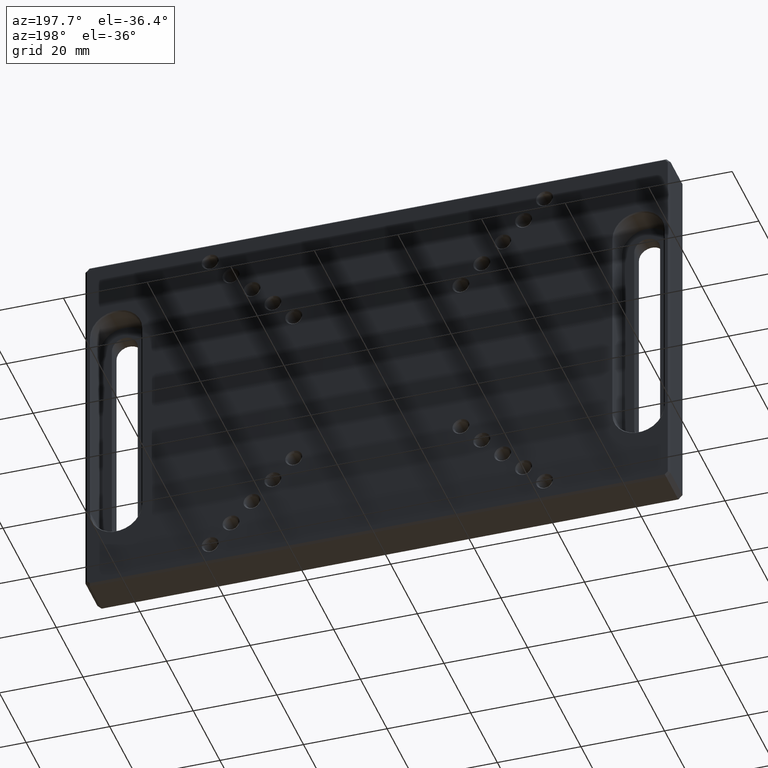
[diagram: clean part render]
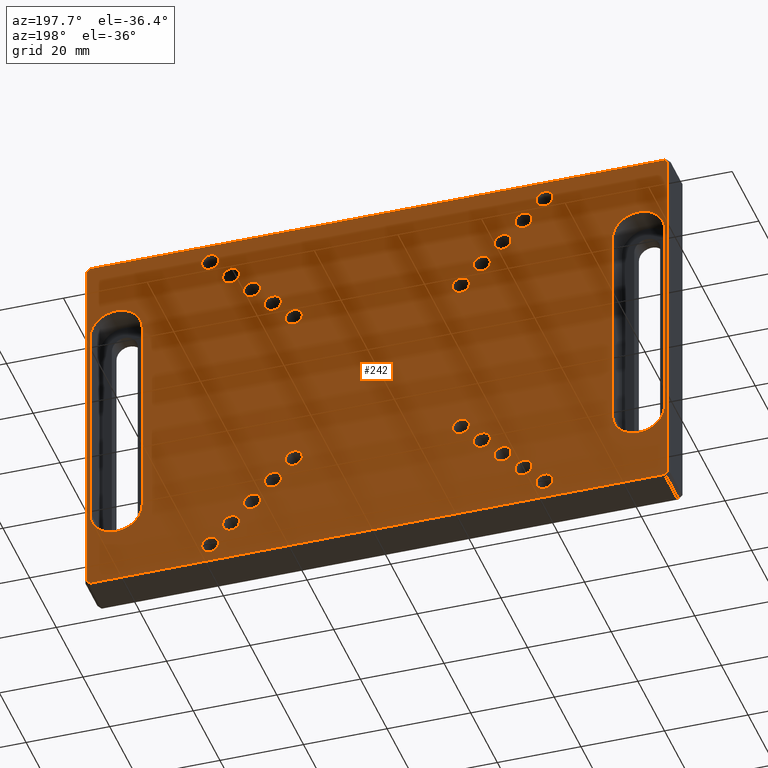
[diagram: same view with one face highlighted and labeled with its STEP entity id]
A machine part, auxiliary view. The second image highlights one B-rep face of the part: STEP entity #242.
In plain terms, the highlighted planar face has unit normal (0, 1, 0).
Its self-contained STEP definition (entity closure, byte-faithful):
#7 = CARTESIAN_POINT ( 'NONE',  ( -20.00000000000000711, 10.00000000000000178, 22.02499999999999858 ) ) ;
#18 = CARTESIAN_POINT ( 'NONE',  ( 29.99999999999999289, 10.00000000000000178, -29.99999999999999289 ) ) ;
#20 = DIRECTION ( 'NONE',  ( 0.000000000000000000, 0.000000000000000000, 1.000000000000000000 ) ) ;
#30 = DIRECTION ( 'NONE',  ( 0.000000000000000000, 0.000000000000000000, 1.000000000000000000 ) ) ;
#42 = CIRCLE ( 'NONE', #1720, 2.024999999999999023 ) ;
#51 = EDGE_CURVE ( 'NONE', #419, #1756, #1137, .T. ) ;
#53 = AXIS2_PLACEMENT_3D ( 'NONE', #1173, #2216, #1393 ) ;
#58 = AXIS2_PLACEMENT_3D ( 'NONE', #1581, #1317, #1689 ) ;
#59 = ORIENTED_EDGE ( 'NONE', *, *, #1620, .F. ) ;
#60 = DIRECTION ( 'NONE',  ( -0.000000000000000000, 1.000000000000000000, -0.000000000000000000 ) ) ;
#66 = VECTOR ( 'NONE', #2354, 1000.000000000000114 ) ;
#67 = ORIENTED_EDGE ( 'NONE', *, *, #161, .F. ) ;
#76 = ORIENTED_EDGE ( 'NONE', *, *, #1168, .F. ) ;
#106 = VERTEX_POINT ( 'NONE', #209 ) ;
#115 = EDGE_CURVE ( 'NONE', #690, #419, #2393, .T. ) ;
#123 = LINE ( 'NONE', #2121, #2123 ) ;
#145 = EDGE_LOOP ( 'NONE', ( #542 ) ) ;
#148 = ORIENTED_EDGE ( 'NONE', *, *, #1086, .T. ) ;
#154 = ORIENTED_EDGE ( 'NONE', *, *, #2022, .F. ) ;
#157 = ORIENTED_EDGE ( 'NONE', *, *, #51, .T. ) ;
#161 = EDGE_CURVE ( 'NONE', #321, #321, #1585, .T. ) ;
#194 = EDGE_LOOP ( 'NONE', ( #1064 ) ) ;
#199 = CARTESIAN_POINT ( 'NONE',  ( 34.99999999999998579, 10.00000000000000178, -32.97500000000001563 ) ) ;
#201 = AXIS2_PLACEMENT_3D ( 'NONE', #1565, #1133, #1342 ) ;
#205 = CARTESIAN_POINT ( 'NONE',  ( 68.79289321881347519, 10.00000000000000000, -44.50000000000001421 ) ) ;
#209 = CARTESIAN_POINT ( 'NONE',  ( 68.75000000000000000, 10.00000000000000000, -25.00000000000000711 ) ) ;
#210 = CARTESIAN_POINT ( 'NONE',  ( 56.24999999999996447, 10.00000000000000000, -24.99999999999999289 ) ) ;
#222 = CARTESIAN_POINT ( 'NONE',  ( 34.99999999999998579, 10.00000000000000178, -35.00000000000001421 ) ) ;
#237 = ORIENTED_EDGE ( 'NONE', *, *, #1379, .T. ) ;
#242 = ADVANCED_FACE ( 'NONE', ( #1651, #2457, #1035, #2431, #439, #1252, #2035, #1445, #663, #246, #649, #1625, #2484, #466, #1893, #2232, #2259, #1239, #1048, #1665, #2271, #286, #844 ), #1638, .T. ) ;
#246 = FACE_BOUND ( 'NONE', #194, .T. ) ;
#252 = AXIS2_PLACEMENT_3D ( 'NONE', #985, #1787, #2594 ) ;
#258 = DIRECTION ( 'NONE',  ( 0.000000000000000000, 0.000000000000000000, -1.000000000000000000 ) ) ;
#261 = AXIS2_PLACEMENT_3D ( 'NONE', #2050, #2499, #1485 ) ;
#264 = EDGE_LOOP ( 'NONE', ( #2187 ) ) ;
#267 = AXIS2_PLACEMENT_3D ( 'NONE', #1490, #60, #1698 ) ;
#272 = EDGE_LOOP ( 'NONE', ( #76 ) ) ;
#275 = CARTESIAN_POINT ( 'NONE',  ( 69.50000000000000000, 10.00000000000000000, -43.79289321881348229 ) ) ;
#278 = VERTEX_POINT ( 'NONE', #1678 ) ;
#284 = EDGE_CURVE ( 'NONE', #2107, #2107, #1172, .T. ) ;
#286 = FACE_BOUND ( 'NONE', #264, .T. ) ;
#291 = DIRECTION ( 'NONE',  ( -0.000000000000000000, -1.000000000000000000, -0.000000000000000000 ) ) ;
#302 = ORIENTED_EDGE ( 'NONE', *, *, #1776, .F. ) ;
#309 = VECTOR ( 'NONE', #2220, 1000.000000000000000 ) ;
#311 = EDGE_LOOP ( 'NONE', ( #1251 ) ) ;
#315 = VECTOR ( 'NONE', #2058, 1000.000000000000000 ) ;
#318 = DIRECTION ( 'NONE',  ( 0.000000000000000000, 0.000000000000000000, -1.000000000000000000 ) ) ;
#321 = VERTEX_POINT ( 'NONE', #941 ) ;
#331 = EDGE_LOOP ( 'NONE', ( #1292 ) ) ;
#337 = DIRECTION ( 'NONE',  ( -0.7071067811865524577, 0.000000000000000000, 0.7071067811865426878 ) ) ;
#341 = CARTESIAN_POINT ( 'NONE',  ( -40.00000000000001421, 10.00000000000000178, 39.99999999999999289 ) ) ;
#343 = ORIENTED_EDGE ( 'NONE', *, *, #1617, .F. ) ;
#351 = DIRECTION ( 'NONE',  ( 0.000000000000000000, 0.000000000000000000, 1.000000000000000000 ) ) ;
#386 = ORIENTED_EDGE ( 'NONE', *, *, #2573, .T. ) ;
#393 = DIRECTION ( 'NONE',  ( 0.000000000000000000, 0.000000000000000000, 1.000000000000000000 ) ) ;
#397 = CARTESIAN_POINT ( 'NONE',  ( 62.49999999999998579, 10.00000000000000000, -25.00000000000000711 ) ) ;
#404 = DIRECTION ( 'NONE',  ( 0.000000000000000000, 0.000000000000000000, 1.000000000000000000 ) ) ;
#406 = VERTEX_POINT ( 'NONE', #1813 ) ;
#413 = AXIS2_PLACEMENT_3D ( 'NONE', #1507, #1890, #2453 ) ;
#417 = AXIS2_PLACEMENT_3D ( 'NONE', #835, #1840, #2049 ) ;
#419 = VERTEX_POINT ( 'NONE', #2113 ) ;
#430 = VERTEX_POINT ( 'NONE', #1230 ) ;
#435 = AXIS2_PLACEMENT_3D ( 'NONE', #449, #2480, #1676 ) ;
#439 = FACE_BOUND ( 'NONE', #758, .T. ) ;
#443 = CARTESIAN_POINT ( 'NONE',  ( -20.00000000000000711, 10.00000000000000178, 20.00000000000000000 ) ) ;
#449 = CARTESIAN_POINT ( 'NONE',  ( -62.50000000000001421, 10.00000000000000000, 25.00000000000000000 ) ) ;
#453 = CIRCLE ( 'NONE', #413, 2.024999999999999023 ) ;
#456 = CARTESIAN_POINT ( 'NONE',  ( 62.49999999999998579, 10.00000000000000000, 25.00000000000000000 ) ) ;
#460 = EDGE_CURVE ( 'NONE', #1326, #1326, #2186, .T. ) ;
#466 = FACE_BOUND ( 'NONE', #1208, .T. ) ;
#492 = DIRECTION ( 'NONE',  ( -0.000000000000000000, 1.000000000000000000, -0.000000000000000000 ) ) ;
#498 = CARTESIAN_POINT ( 'NONE',  ( -68.75000000000000000, 10.00000000000000000, -25.00000000000000000 ) ) ;
#500 = EDGE_CURVE ( 'NONE', #1936, #1936, #851, .T. ) ;
#517 = AXIS2_PLACEMENT_3D ( 'NONE', #997, #1775, #2193 ) ;
#522 = VERTEX_POINT ( 'NONE', #205 ) ;
#534 = CIRCLE ( 'NONE', #1157, 2.024999999999999023 ) ;
#542 = ORIENTED_EDGE ( 'NONE', *, *, #1409, .F. ) ;
#551 = CARTESIAN_POINT ( 'NONE',  ( -69.00000000000001421, 10.00000000000000000, -44.50000000000002132 ) ) ;
#558 = DIRECTION ( 'NONE',  ( 0.000000000000000000, 0.000000000000000000, 1.000000000000000000 ) ) ;
#567 = DIRECTION ( 'NONE',  ( 1.000000000000000000, 0.000000000000000000, 0.000000000000000000 ) ) ;
#577 = EDGE_CURVE ( 'NONE', #1756, #785, #605, .T. ) ;
#588 = CARTESIAN_POINT ( 'NONE',  ( 40.00000000000000000, 10.00000000000000178, 42.02499999999999147 ) ) ;
#600 = VERTEX_POINT ( 'NONE', #1205 ) ;
#605 = LINE ( 'NONE', #782, #2486 ) ;
#607 = ORIENTED_EDGE ( 'NONE', *, *, #2246, .T. ) ;
#609 = CARTESIAN_POINT ( 'NONE',  ( 68.75000000000000000, 10.00000000000000000, 0.000000000000000000 ) ) ;
#610 = CARTESIAN_POINT ( 'NONE',  ( -25.00000000000001066, 10.00000000000000178, -22.97500000000000142 ) ) ;
#622 = EDGE_CURVE ( 'NONE', #278, #1047, #1649, .T. ) ;
#639 = EDGE_CURVE ( 'NONE', #1373, #1373, #1518, .T. ) ;
#645 = ORIENTED_EDGE ( 'NONE', *, *, #1758, .F. ) ;
#649 = FACE_BOUND ( 'NONE', #311, .T. ) ;
#653 = EDGE_CURVE ( 'NONE', #1047, #696, #1769, .T. ) ;
#661 = LINE ( 'NONE', #686, #772 ) ;
#663 = FACE_BOUND ( 'NONE', #958, .T. ) ;
#666 = EDGE_CURVE ( 'NONE', #1820, #1538, #661, .T. ) ;
#674 = DIRECTION ( 'NONE',  ( -0.000000000000000000, 1.000000000000000000, -0.000000000000000000 ) ) ;
#682 = DIRECTION ( 'NONE',  ( 0.000000000000000000, 0.000000000000000000, 1.000000000000000000 ) ) ;
#686 = CARTESIAN_POINT ( 'NONE',  ( 69.50000000000000000, 10.00000000000000000, -44.00000000000000711 ) ) ;
#690 = VERTEX_POINT ( 'NONE', #855 ) ;
#696 = VERTEX_POINT ( 'NONE', #1481 ) ;
#703 = CARTESIAN_POINT ( 'NONE',  ( -35.00000000000002132, 10.00000000000000178, -35.00000000000001421 ) ) ;
#721 = CIRCLE ( 'NONE', #2009, 2.024999999999999023 ) ;
#725 = CARTESIAN_POINT ( 'NONE',  ( -35.00000000000001421, 10.00000000000000178, 37.02499999999999147 ) ) ;
#732 = CARTESIAN_POINT ( 'NONE',  ( -68.79289321881343255, 10.00000000000000000, 44.50000000000000000 ) ) ;
#752 = DIRECTION ( 'NONE',  ( 0.000000000000000000, 0.000000000000000000, 1.000000000000000000 ) ) ;
#758 = EDGE_LOOP ( 'NONE', ( #2443 ) ) ;
#772 = VECTOR ( 'NONE', #258, 1000.000000000000000 ) ;
#773 = ORIENTED_EDGE ( 'NONE', *, *, #1695, .T. ) ;
#776 = VERTEX_POINT ( 'NONE', #610 ) ;
#781 = EDGE_CURVE ( 'NONE', #776, #776, #1476, .T. ) ;
#782 = CARTESIAN_POINT ( 'NONE',  ( 68.99999999999998579, 10.00000000000000000, 44.50000000000000000 ) ) ;
#785 = VERTEX_POINT ( 'NONE', #2572 ) ;
#787 = DIRECTION ( 'NONE',  ( 3.083952846180990774E-16, 0.000000000000000000, 1.000000000000000000 ) ) ;
#788 = CARTESIAN_POINT ( 'NONE',  ( -30.00000000000000711, 10.00000000000000178, -29.99999999999999289 ) ) ;
#789 = VERTEX_POINT ( 'NONE', #1802 ) ;
#793 = ORIENTED_EDGE ( 'NONE', *, *, #1236, .F. ) ;
#800 = CARTESIAN_POINT ( 'NONE',  ( -35.00000000000002132, 10.00000000000000178, -32.97500000000001563 ) ) ;
#811 = CARTESIAN_POINT ( 'NONE',  ( -20.00000000000000711, 10.00000000000000178, -17.97500000000000142 ) ) ;
#820 = EDGE_LOOP ( 'NONE', ( #343 ) ) ;
#823 = LINE ( 'NONE', #609, #309 ) ;
#835 = CARTESIAN_POINT ( 'NONE',  ( 0.000000000000000000, 10.00000000000000000, 0.000000000000000000 ) ) ;
#840 = DIRECTION ( 'NONE',  ( 0.000000000000000000, 0.000000000000000000, -1.000000000000000000 ) ) ;
#844 = FACE_OUTER_BOUND ( 'NONE', #2368, .T. ) ;
#848 = EDGE_LOOP ( 'NONE', ( #67 ) ) ;
#851 = CIRCLE ( 'NONE', #53, 2.024999999999999023 ) ;
#855 = CARTESIAN_POINT ( 'NONE',  ( -69.50000000000002842, 10.00000000000000000, -43.79289321881346808 ) ) ;
#880 = CARTESIAN_POINT ( 'NONE',  ( -68.79289321881347519, 10.00000000000000000, -44.50000000000002132 ) ) ;
#888 = EDGE_LOOP ( 'NONE', ( #302 ) ) ;
#914 = CARTESIAN_POINT ( 'NONE',  ( 34.99999999999999289, 10.00000000000000178, 34.99999999999999289 ) ) ;
#925 = DIRECTION ( 'NONE',  ( -0.7071067811865474617, 0.000000000000000000, -0.7071067811865474617 ) ) ;
#928 = CARTESIAN_POINT ( 'NONE',  ( -56.64644660940718524, 10.00000000000000000, 56.64644660940640364 ) ) ;
#941 = CARTESIAN_POINT ( 'NONE',  ( -40.00000000000001421, 10.00000000000000178, -37.97500000000000853 ) ) ;
#958 = EDGE_LOOP ( 'NONE', ( #793 ) ) ;
#966 = CIRCLE ( 'NONE', #2438, 2.024999999999999023 ) ;
#977 = EDGE_CURVE ( 'NONE', #1764, #1764, #1192, .T. ) ;
#980 = DIRECTION ( 'NONE',  ( -0.000000000000000000, 1.000000000000000000, -0.000000000000000000 ) ) ;
#981 = CARTESIAN_POINT ( 'NONE',  ( 68.75000000000000000, 10.00000000000000000, 25.00000000000000000 ) ) ;
#985 = CARTESIAN_POINT ( 'NONE',  ( -40.00000000000001421, 10.00000000000000178, -40.00000000000000711 ) ) ;
#987 = VERTEX_POINT ( 'NONE', #2597 ) ;
#996 = DIRECTION ( 'NONE',  ( 0.7071067811865426878, 0.000000000000000000, 0.7071067811865524577 ) ) ;
#997 = CARTESIAN_POINT ( 'NONE',  ( -62.50000000000001421, 10.00000000000000000, -25.00000000000000000 ) ) ;
#1005 = CARTESIAN_POINT ( 'NONE',  ( -35.00000000000001421, 10.00000000000000178, 34.99999999999999289 ) ) ;
#1013 = VERTEX_POINT ( 'NONE', #811 ) ;
#1023 = AXIS2_PLACEMENT_3D ( 'NONE', #397, #1194, #2196 ) ;
#1035 = FACE_BOUND ( 'NONE', #848, .T. ) ;
#1038 = CARTESIAN_POINT ( 'NONE',  ( 19.99999999999999289, 10.00000000000000178, -17.97500000000000142 ) ) ;
#1047 = VERTEX_POINT ( 'NONE', #2011 ) ;
#1048 = FACE_BOUND ( 'NONE', #2134, .T. ) ;
#1064 = ORIENTED_EDGE ( 'NONE', *, *, #1429, .F. ) ;
#1067 = CIRCLE ( 'NONE', #1113, 2.024999999999999023 ) ;
#1070 = DIRECTION ( 'NONE',  ( 0.000000000000000000, 0.000000000000000000, 1.000000000000000000 ) ) ;
#1078 = VERTEX_POINT ( 'NONE', #498 ) ;
#1085 = ORIENTED_EDGE ( 'NONE', *, *, #653, .T. ) ;
#1086 = EDGE_CURVE ( 'NONE', #1921, #2475, #2406, .T. ) ;
#1107 = LINE ( 'NONE', #1119, #66 ) ;
#1108 = ORIENTED_EDGE ( 'NONE', *, *, #781, .F. ) ;
#1113 = AXIS2_PLACEMENT_3D ( 'NONE', #341, #1920, #351 ) ;
#1119 = CARTESIAN_POINT ( 'NONE',  ( 56.64644660940648890, 10.00000000000000000, 56.64644660940687970 ) ) ;
#1133 = DIRECTION ( 'NONE',  ( -0.000000000000000000, 1.000000000000000000, -0.000000000000000000 ) ) ;
#1137 = LINE ( 'NONE', #928, #2131 ) ;
#1154 = EDGE_CURVE ( 'NONE', #2475, #1365, #2504, .T. ) ;
#1157 = AXIS2_PLACEMENT_3D ( 'NONE', #914, #1525, #558 ) ;
#1168 = EDGE_CURVE ( 'NONE', #1217, #1217, #1559, .T. ) ;
#1172 = CIRCLE ( 'NONE', #2301, 2.024999999999999023 ) ;
#1173 = CARTESIAN_POINT ( 'NONE',  ( -25.00000000000000355, 10.00000000000000178, 25.00000000000000000 ) ) ;
#1179 = CIRCLE ( 'NONE', #1674, 2.024999999999999023 ) ;
#1191 = VERTEX_POINT ( 'NONE', #199 ) ;
#1192 = CIRCLE ( 'NONE', #2576, 2.024999999999999023 ) ;
#1194 = DIRECTION ( 'NONE',  ( -0.000000000000000000, -1.000000000000000000, -0.000000000000000000 ) ) ;
#1205 = CARTESIAN_POINT ( 'NONE',  ( -40.00000000000001421, 10.00000000000000178, 42.02499999999999147 ) ) ;
#1208 = EDGE_LOOP ( 'NONE', ( #645 ) ) ;
#1217 = VERTEX_POINT ( 'NONE', #588 ) ;
#1230 = CARTESIAN_POINT ( 'NONE',  ( 30.00000000000000000, 10.00000000000000178, 32.02500000000000568 ) ) ;
#1236 = EDGE_CURVE ( 'NONE', #1777, #1777, #1680, .T. ) ;
#1239 = FACE_BOUND ( 'NONE', #1939, .T. ) ;
#1240 = CIRCLE ( 'NONE', #1023, 6.250000000000019540 ) ;
#1251 = ORIENTED_EDGE ( 'NONE', *, *, #1505, .F. ) ;
#1252 = FACE_BOUND ( 'NONE', #1288, .T. ) ;
#1276 = AXIS2_PLACEMENT_3D ( 'NONE', #456, #291, #682 ) ;
#1288 = EDGE_LOOP ( 'NONE', ( #1108 ) ) ;
#1292 = ORIENTED_EDGE ( 'NONE', *, *, #284, .F. ) ;
#1293 = DIRECTION ( 'NONE',  ( 0.000000000000000000, 0.000000000000000000, 1.000000000000000000 ) ) ;
#1317 = DIRECTION ( 'NONE',  ( -0.000000000000000000, 1.000000000000000000, -0.000000000000000000 ) ) ;
#1326 = VERTEX_POINT ( 'NONE', #725 ) ;
#1327 = ORIENTED_EDGE ( 'NONE', *, *, #460, .F. ) ;
#1342 = DIRECTION ( 'NONE',  ( 0.000000000000000000, 0.000000000000000000, 1.000000000000000000 ) ) ;
#1349 = DIRECTION ( 'NONE',  ( -0.000000000000000000, 1.000000000000000000, -0.000000000000000000 ) ) ;
#1359 = DIRECTION ( 'NONE',  ( 0.000000000000000000, 0.000000000000000000, 1.000000000000000000 ) ) ;
#1365 = VERTEX_POINT ( 'NONE', #210 ) ;
#1368 = EDGE_CURVE ( 'NONE', #106, #1921, #823, .T. ) ;
#1373 = VERTEX_POINT ( 'NONE', #2421 ) ;
#1376 = EDGE_CURVE ( 'NONE', #789, #789, #966, .T. ) ;
#1378 = ORIENTED_EDGE ( 'NONE', *, *, #1368, .T. ) ;
#1379 = EDGE_CURVE ( 'NONE', #1078, #278, #1637, .T. ) ;
#1393 = DIRECTION ( 'NONE',  ( 0.000000000000000000, 0.000000000000000000, 1.000000000000000000 ) ) ;
#1399 = CARTESIAN_POINT ( 'NONE',  ( -20.00000000000000711, 10.00000000000000178, -20.00000000000000000 ) ) ;
#1409 = EDGE_CURVE ( 'NONE', #1013, #1013, #1554, .T. ) ;
#1422 = DIRECTION ( 'NONE',  ( -0.000000000000000000, 1.000000000000000000, -0.000000000000000000 ) ) ;
#1423 = CARTESIAN_POINT ( 'NONE',  ( 24.99999999999998934, 10.00000000000000178, -22.97499999999999787 ) ) ;
#1429 = EDGE_CURVE ( 'NONE', #1604, #1604, #42, .T. ) ;
#1431 = VECTOR ( 'NONE', #318, 1000.000000000000000 ) ;
#1433 = DIRECTION ( 'NONE',  ( 0.000000000000000000, 0.000000000000000000, 1.000000000000000000 ) ) ;
#1441 = EDGE_LOOP ( 'NONE', ( #2270 ) ) ;
#1445 = FACE_BOUND ( 'NONE', #2102, .T. ) ;
#1460 = VERTEX_POINT ( 'NONE', #1038 ) ;
#1476 = CIRCLE ( 'NONE', #58, 2.024999999999999023 ) ;
#1481 = CARTESIAN_POINT ( 'NONE',  ( -68.75000000000000000, 10.00000000000000000, 25.00000000000000000 ) ) ;
#1484 = CARTESIAN_POINT ( 'NONE',  ( 24.99999999999999645, 10.00000000000000178, 25.00000000000000000 ) ) ;
#1485 = DIRECTION ( 'NONE',  ( 0.000000000000000000, 0.000000000000000000, 1.000000000000000000 ) ) ;
#1490 = CARTESIAN_POINT ( 'NONE',  ( 40.00000000000000000, 10.00000000000000178, 39.99999999999999289 ) ) ;
#1505 = EDGE_CURVE ( 'NONE', #1191, #1191, #1179, .T. ) ;
#1507 = CARTESIAN_POINT ( 'NONE',  ( 19.99999999999999289, 10.00000000000000178, -20.00000000000000000 ) ) ;
#1518 = CIRCLE ( 'NONE', #1563, 2.024999999999999023 ) ;
#1525 = DIRECTION ( 'NONE',  ( -0.000000000000000000, 1.000000000000000000, -0.000000000000000000 ) ) ;
#1528 = ORIENTED_EDGE ( 'NONE', *, *, #1154, .T. ) ;
#1538 = VERTEX_POINT ( 'NONE', #275 ) ;
#1554 = CIRCLE ( 'NONE', #2265, 2.024999999999999023 ) ;
#1559 = CIRCLE ( 'NONE', #267, 2.024999999999999023 ) ;
#1562 = ORIENTED_EDGE ( 'NONE', *, *, #115, .T. ) ;
#1563 = AXIS2_PLACEMENT_3D ( 'NONE', #2441, #674, #1070 ) ;
#1565 = CARTESIAN_POINT ( 'NONE',  ( 30.00000000000000000, 10.00000000000000178, 30.00000000000000711 ) ) ;
#1581 = CARTESIAN_POINT ( 'NONE',  ( -25.00000000000001066, 10.00000000000000178, -25.00000000000000000 ) ) ;
#1585 = CIRCLE ( 'NONE', #252, 2.024999999999999023 ) ;
#1586 = DIRECTION ( 'NONE',  ( 0.000000000000000000, 0.000000000000000000, 1.000000000000000000 ) ) ;
#1591 = DIRECTION ( 'NONE',  ( -0.000000000000000000, 1.000000000000000000, -0.000000000000000000 ) ) ;
#1604 = VERTEX_POINT ( 'NONE', #1789 ) ;
#1617 = EDGE_CURVE ( 'NONE', #987, #987, #1846, .T. ) ;
#1620 = EDGE_CURVE ( 'NONE', #2222, #2222, #721, .T. ) ;
#1625 = FACE_BOUND ( 'NONE', #1441, .T. ) ;
#1637 = CIRCLE ( 'NONE', #517, 6.249999999999992006 ) ;
#1638 = PLANE ( 'NONE',  #417 ) ;
#1649 = LINE ( 'NONE', #2466, #315 ) ;
#1651 = FACE_BOUND ( 'NONE', #2524, .T. ) ;
#1665 = FACE_BOUND ( 'NONE', #2575, .T. ) ;
#1674 = AXIS2_PLACEMENT_3D ( 'NONE', #222, #1422, #393 ) ;
#1676 = DIRECTION ( 'NONE',  ( 0.000000000000000000, 0.000000000000000000, 1.000000000000000000 ) ) ;
#1678 = CARTESIAN_POINT ( 'NONE',  ( -56.25000000000002842, 10.00000000000000000, -25.00000000000000000 ) ) ;
#1680 = CIRCLE ( 'NONE', #2397, 2.024999999999999023 ) ;
#1685 = AXIS2_PLACEMENT_3D ( 'NONE', #1005, #980, #1586 ) ;
#1689 = DIRECTION ( 'NONE',  ( 0.000000000000000000, 0.000000000000000000, 1.000000000000000000 ) ) ;
#1695 = EDGE_CURVE ( 'NONE', #785, #1820, #1107, .T. ) ;
#1697 = ORIENTED_EDGE ( 'NONE', *, *, #2135, .F. ) ;
#1698 = DIRECTION ( 'NONE',  ( 0.000000000000000000, 0.000000000000000000, 1.000000000000000000 ) ) ;
#1702 = EDGE_CURVE ( 'NONE', #1538, #522, #2151, .T. ) ;
#1720 = AXIS2_PLACEMENT_3D ( 'NONE', #18, #2024, #30 ) ;
#1739 = EDGE_CURVE ( 'NONE', #600, #600, #1067, .T. ) ;
#1740 = ORIENTED_EDGE ( 'NONE', *, *, #2359, .T. ) ;
#1753 = VECTOR ( 'NONE', #1950, 1000.000000000000000 ) ;
#1756 = VERTEX_POINT ( 'NONE', #732 ) ;
#1758 = EDGE_CURVE ( 'NONE', #406, #406, #534, .T. ) ;
#1764 = VERTEX_POINT ( 'NONE', #7 ) ;
#1769 = CIRCLE ( 'NONE', #435, 6.249999999999992006 ) ;
#1775 = DIRECTION ( 'NONE',  ( -0.000000000000000000, -1.000000000000000000, -0.000000000000000000 ) ) ;
#1776 = EDGE_CURVE ( 'NONE', #430, #430, #1826, .T. ) ;
#1777 = VERTEX_POINT ( 'NONE', #1423 ) ;
#1781 = EDGE_LOOP ( 'NONE', ( #59 ) ) ;
#1787 = DIRECTION ( 'NONE',  ( -0.000000000000000000, 1.000000000000000000, -0.000000000000000000 ) ) ;
#1789 = CARTESIAN_POINT ( 'NONE',  ( 29.99999999999999289, 10.00000000000000178, -27.97499999999999432 ) ) ;
#1795 = VECTOR ( 'NONE', #787, 1000.000000000000000 ) ;
#1802 = CARTESIAN_POINT ( 'NONE',  ( -30.00000000000000711, 10.00000000000000178, -27.97499999999999432 ) ) ;
#1808 = ORIENTED_EDGE ( 'NONE', *, *, #500, .F. ) ;
#1813 = CARTESIAN_POINT ( 'NONE',  ( 34.99999999999999289, 10.00000000000000178, 37.02499999999999147 ) ) ;
#1820 = VERTEX_POINT ( 'NONE', #2317 ) ;
#1826 = CIRCLE ( 'NONE', #201, 2.024999999999999023 ) ;
#1828 = CARTESIAN_POINT ( 'NONE',  ( -69.50000000000000000, 10.00000000000000000, 43.99999999999995737 ) ) ;
#1834 = LINE ( 'NONE', #2185, #2116 ) ;
#1840 = DIRECTION ( 'NONE',  ( 0.000000000000000000, 1.000000000000000000, 0.000000000000000000 ) ) ;
#1846 = CIRCLE ( 'NONE', #261, 2.024999999999999023 ) ;
#1870 = VERTEX_POINT ( 'NONE', #2291 ) ;
#1890 = DIRECTION ( 'NONE',  ( -0.000000000000000000, 1.000000000000000000, -0.000000000000000000 ) ) ;
#1893 = FACE_BOUND ( 'NONE', #888, .T. ) ;
#1895 = ORIENTED_EDGE ( 'NONE', *, *, #666, .T. ) ;
#1920 = DIRECTION ( 'NONE',  ( -0.000000000000000000, 1.000000000000000000, -0.000000000000000000 ) ) ;
#1921 = VERTEX_POINT ( 'NONE', #981 ) ;
#1926 = CARTESIAN_POINT ( 'NONE',  ( -25.00000000000000355, 10.00000000000000178, 27.02500000000000213 ) ) ;
#1936 = VERTEX_POINT ( 'NONE', #1926 ) ;
#1939 = EDGE_LOOP ( 'NONE', ( #2560 ) ) ;
#1950 = DIRECTION ( 'NONE',  ( -1.000000000000000000, 0.000000000000000000, -4.956352788505162775E-17 ) ) ;
#1995 = AXIS2_PLACEMENT_3D ( 'NONE', #2574, #1349, #752 ) ;
#2009 = AXIS2_PLACEMENT_3D ( 'NONE', #703, #2260, #2470 ) ;
#2011 = CARTESIAN_POINT ( 'NONE',  ( -56.25000000000002842, 10.00000000000000000, 25.00000000000000000 ) ) ;
#2022 = EDGE_CURVE ( 'NONE', #1460, #1460, #453, .T. ) ;
#2024 = DIRECTION ( 'NONE',  ( -0.000000000000000000, 1.000000000000000000, -0.000000000000000000 ) ) ;
#2029 = VERTEX_POINT ( 'NONE', #880 ) ;
#2035 = FACE_BOUND ( 'NONE', #145, .T. ) ;
#2040 = CIRCLE ( 'NONE', #1995, 2.024999999999999023 ) ;
#2049 = DIRECTION ( 'NONE',  ( 0.000000000000000000, -0.000000000000000000, 1.000000000000000000 ) ) ;
#2050 = CARTESIAN_POINT ( 'NONE',  ( 20.00000000000000000, 10.00000000000000178, 20.00000000000000000 ) ) ;
#2058 = DIRECTION ( 'NONE',  ( 0.000000000000000000, 0.000000000000000000, 1.000000000000000000 ) ) ;
#2065 = CARTESIAN_POINT ( 'NONE',  ( 56.24999999999997158, 10.00000000000000000, -24.99999999999999289 ) ) ;
#2092 = CARTESIAN_POINT ( 'NONE',  ( 56.24999999999997158, 10.00000000000000000, 25.00000000000000000 ) ) ;
#2102 = EDGE_LOOP ( 'NONE', ( #154 ) ) ;
#2107 = VERTEX_POINT ( 'NONE', #2360 ) ;
#2113 = CARTESIAN_POINT ( 'NONE',  ( -69.50000000000000000, 10.00000000000000000, 43.79289321881341834 ) ) ;
#2116 = VECTOR ( 'NONE', #840, 1000.000000000000000 ) ;
#2121 = CARTESIAN_POINT ( 'NONE',  ( -56.64644660940626153, 10.00000000000000000, -56.64644660940705023 ) ) ;
#2123 = VECTOR ( 'NONE', #337, 1000.000000000000000 ) ;
#2130 = CARTESIAN_POINT ( 'NONE',  ( 24.99999999999998934, 10.00000000000000178, -24.99999999999999645 ) ) ;
#2131 = VECTOR ( 'NONE', #996, 1000.000000000000000 ) ;
#2134 = EDGE_LOOP ( 'NONE', ( #1808 ) ) ;
#2135 = EDGE_CURVE ( 'NONE', #1870, #1870, #2040, .T. ) ;
#2151 = LINE ( 'NONE', #2512, #2544 ) ;
#2153 = ORIENTED_EDGE ( 'NONE', *, *, #622, .T. ) ;
#2185 = CARTESIAN_POINT ( 'NONE',  ( -68.75000000000000000, 10.00000000000000000, -25.00000000000000000 ) ) ;
#2186 = CIRCLE ( 'NONE', #1685, 2.024999999999999023 ) ;
#2187 = ORIENTED_EDGE ( 'NONE', *, *, #1739, .F. ) ;
#2193 = DIRECTION ( 'NONE',  ( 0.000000000000000000, 0.000000000000000000, 1.000000000000000000 ) ) ;
#2196 = DIRECTION ( 'NONE',  ( 0.000000000000000000, 0.000000000000000000, 1.000000000000000000 ) ) ;
#2216 = DIRECTION ( 'NONE',  ( -0.000000000000000000, 1.000000000000000000, -0.000000000000000000 ) ) ;
#2220 = DIRECTION ( 'NONE',  ( 0.000000000000000000, 0.000000000000000000, 1.000000000000000000 ) ) ;
#2222 = VERTEX_POINT ( 'NONE', #800 ) ;
#2223 = DIRECTION ( 'NONE',  ( -0.000000000000000000, 1.000000000000000000, -0.000000000000000000 ) ) ;
#2232 = FACE_BOUND ( 'NONE', #331, .T. ) ;
#2246 = EDGE_CURVE ( 'NONE', #2029, #690, #123, .T. ) ;
#2259 = FACE_BOUND ( 'NONE', #820, .T. ) ;
#2260 = DIRECTION ( 'NONE',  ( -0.000000000000000000, 1.000000000000000000, -0.000000000000000000 ) ) ;
#2265 = AXIS2_PLACEMENT_3D ( 'NONE', #1399, #1591, #404 ) ;
#2270 = ORIENTED_EDGE ( 'NONE', *, *, #639, .F. ) ;
#2271 = FACE_BOUND ( 'NONE', #2274, .T. ) ;
#2274 = EDGE_LOOP ( 'NONE', ( #1327 ) ) ;
#2275 = ORIENTED_EDGE ( 'NONE', *, *, #577, .T. ) ;
#2291 = CARTESIAN_POINT ( 'NONE',  ( -30.00000000000000000, 10.00000000000000178, 32.02500000000000568 ) ) ;
#2301 = AXIS2_PLACEMENT_3D ( 'NONE', #1484, #492, #1293 ) ;
#2317 = CARTESIAN_POINT ( 'NONE',  ( 69.50000000000000000, 10.00000000000000000, 43.79289321881345387 ) ) ;
#2354 = DIRECTION ( 'NONE',  ( 0.7071067811865500152, 0.000000000000000000, -0.7071067811865451302 ) ) ;
#2359 = EDGE_CURVE ( 'NONE', #696, #1078, #1834, .T. ) ;
#2360 = CARTESIAN_POINT ( 'NONE',  ( 24.99999999999999645, 10.00000000000000178, 27.02500000000000213 ) ) ;
#2368 = EDGE_LOOP ( 'NONE', ( #386, #607, #1562, #157, #2275, #773, #1895, #2521 ) ) ;
#2379 = EDGE_CURVE ( 'NONE', #1365, #106, #1240, .T. ) ;
#2393 = LINE ( 'NONE', #1828, #1795 ) ;
#2394 = DIRECTION ( 'NONE',  ( -0.000000000000000000, 1.000000000000000000, -0.000000000000000000 ) ) ;
#2397 = AXIS2_PLACEMENT_3D ( 'NONE', #2130, #2543, #1359 ) ;
#2406 = CIRCLE ( 'NONE', #1276, 6.250000000000019540 ) ;
#2421 = CARTESIAN_POINT ( 'NONE',  ( 39.99999999999998579, 10.00000000000000178, -37.97500000000000853 ) ) ;
#2431 = FACE_BOUND ( 'NONE', #1781, .T. ) ;
#2438 = AXIS2_PLACEMENT_3D ( 'NONE', #788, #2394, #1433 ) ;
#2441 = CARTESIAN_POINT ( 'NONE',  ( 39.99999999999998579, 10.00000000000000178, -40.00000000000000711 ) ) ;
#2443 = ORIENTED_EDGE ( 'NONE', *, *, #1376, .F. ) ;
#2453 = DIRECTION ( 'NONE',  ( 0.000000000000000000, 0.000000000000000000, 1.000000000000000000 ) ) ;
#2457 = FACE_BOUND ( 'NONE', #2467, .T. ) ;
#2466 = CARTESIAN_POINT ( 'NONE',  ( -56.25000000000002842, 10.00000000000000000, 0.000000000000000000 ) ) ;
#2467 = EDGE_LOOP ( 'NONE', ( #1085, #1740, #237, #2153 ) ) ;
#2470 = DIRECTION ( 'NONE',  ( 0.000000000000000000, 0.000000000000000000, 1.000000000000000000 ) ) ;
#2475 = VERTEX_POINT ( 'NONE', #2092 ) ;
#2480 = DIRECTION ( 'NONE',  ( -0.000000000000000000, -1.000000000000000000, -0.000000000000000000 ) ) ;
#2484 = FACE_BOUND ( 'NONE', #272, .T. ) ;
#2486 = VECTOR ( 'NONE', #567, 1000.000000000000000 ) ;
#2499 = DIRECTION ( 'NONE',  ( -0.000000000000000000, 1.000000000000000000, -0.000000000000000000 ) ) ;
#2504 = LINE ( 'NONE', #2065, #1431 ) ;
#2512 = CARTESIAN_POINT ( 'NONE',  ( 56.64644660940674470, 10.00000000000000000, -56.64644660940674470 ) ) ;
#2521 = ORIENTED_EDGE ( 'NONE', *, *, #1702, .T. ) ;
#2524 = EDGE_LOOP ( 'NONE', ( #1378, #148, #1528, #2546 ) ) ;
#2533 = LINE ( 'NONE', #551, #1753 ) ;
#2543 = DIRECTION ( 'NONE',  ( -0.000000000000000000, 1.000000000000000000, -0.000000000000000000 ) ) ;
#2544 = VECTOR ( 'NONE', #925, 1000.000000000000114 ) ;
#2546 = ORIENTED_EDGE ( 'NONE', *, *, #2379, .T. ) ;
#2560 = ORIENTED_EDGE ( 'NONE', *, *, #977, .F. ) ;
#2572 = CARTESIAN_POINT ( 'NONE',  ( 68.79289321881346098, 10.00000000000000000, 44.50000000000000000 ) ) ;
#2573 = EDGE_CURVE ( 'NONE', #522, #2029, #2533, .T. ) ;
#2574 = CARTESIAN_POINT ( 'NONE',  ( -30.00000000000000000, 10.00000000000000178, 30.00000000000000711 ) ) ;
#2575 = EDGE_LOOP ( 'NONE', ( #1697 ) ) ;
#2576 = AXIS2_PLACEMENT_3D ( 'NONE', #443, #2223, #20 ) ;
#2594 = DIRECTION ( 'NONE',  ( 0.000000000000000000, 0.000000000000000000, 1.000000000000000000 ) ) ;
#2597 = CARTESIAN_POINT ( 'NONE',  ( 20.00000000000000000, 10.00000000000000178, 22.02499999999999858 ) ) ;